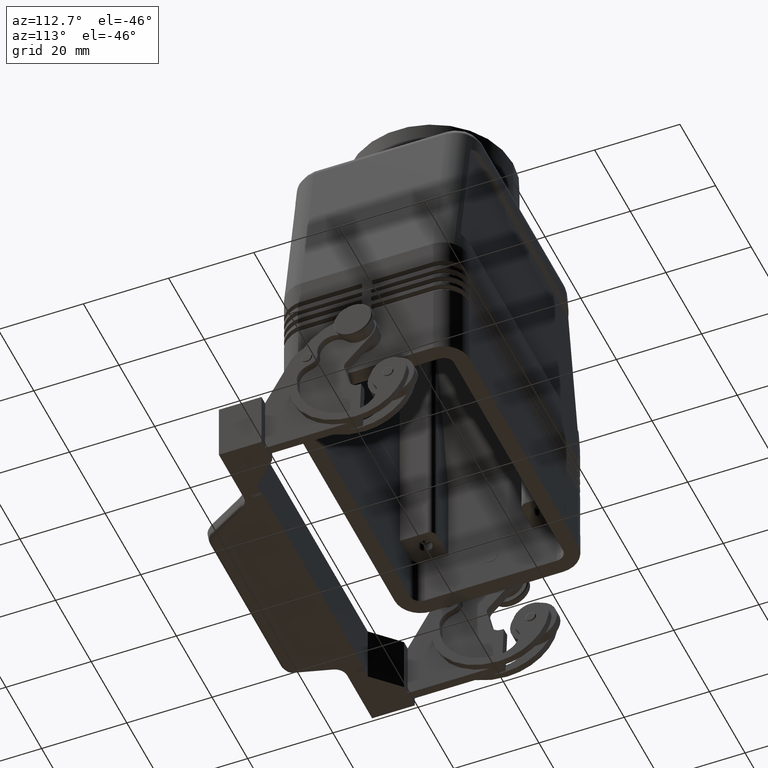
[diagram: clean part render]
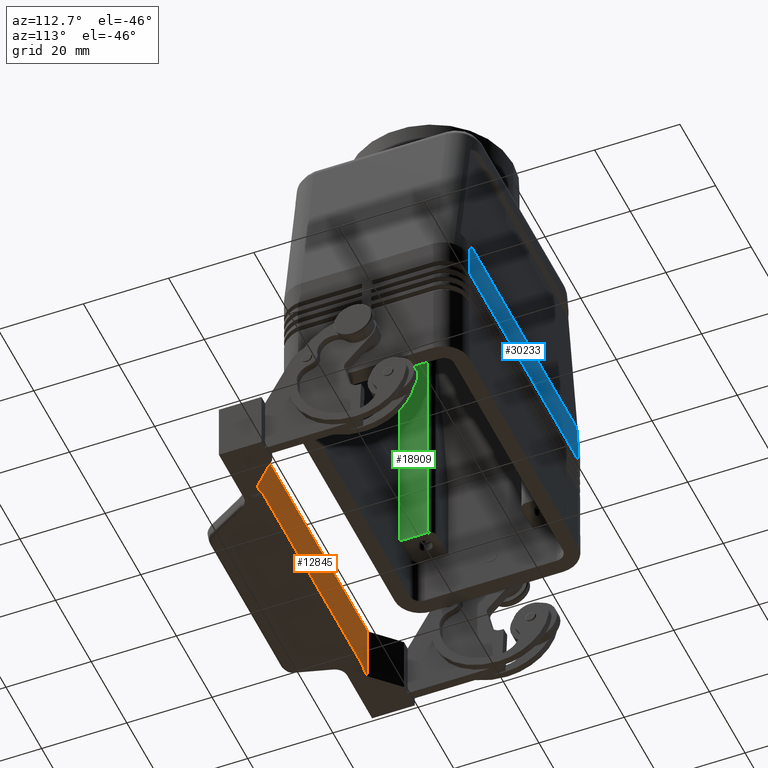
[diagram: same view with three faces highlighted in distinct colors, each labeled with its STEP entity id]
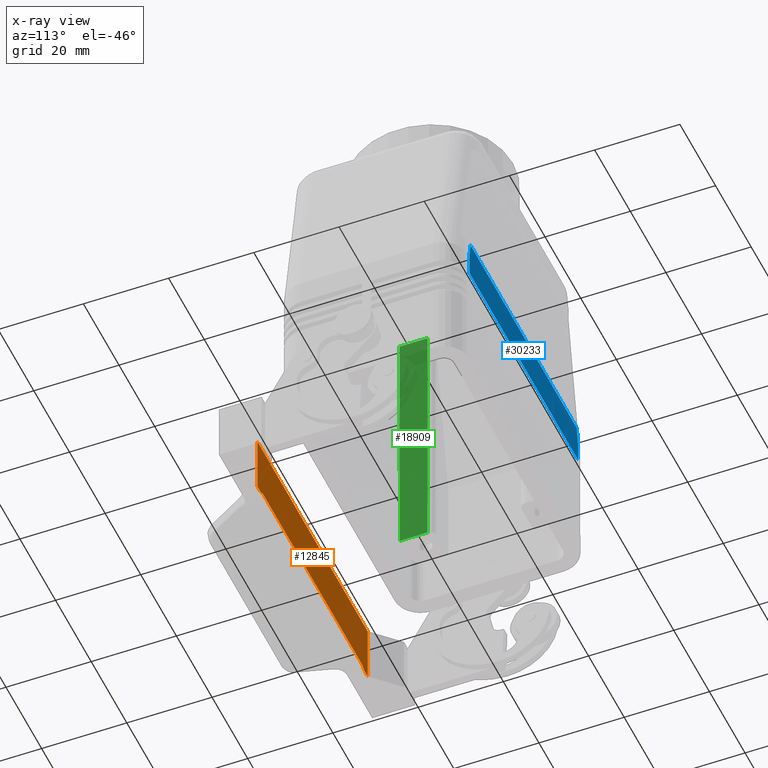
[diagram: x-ray of the same camera — body ghosted, the three highlighted faces saturated]
A machine part, auxiliary view with three faces highlighted in distinct colors.
The next image is the same camera in x-ray (body ghosted, the three faces saturated) — at least one of them is partly hidden behind the body in this view.
Their STEP definitions:

[orange] entity #12845 — the highlighted face is a freeform B-spline surface patch.
#11082=CARTESIAN_POINT('',(31.000000000000007,-28.049999999999997,-6.499999999999998));
#11083=VERTEX_POINT('',#11082);
#11090=CARTESIAN_POINT('',(-31.000000000000007,-28.049999999999997,-6.499999999999998));
#11091=VERTEX_POINT('',#11090);
#11092=CARTESIAN_POINT('',(-31.000000000000007,-28.049999999999997,-6.499999999999998));
#11093=DIRECTION('',(1.0,0.0,0.0));
#11094=VECTOR('',#11093,62.000000000000014);
#11095=LINE('',#11092,#11094);
#11096=EDGE_CURVE('',#11091,#11083,#11095,.T.);
#12183=CARTESIAN_POINT('',(-27.450314117284780,-28.050000000000075,-19.794692077166150));
#12184=VERTEX_POINT('',#12183);
#12204=CARTESIAN_POINT('',(27.450314117284783,-28.050000000000086,-19.794692077166150));
#12205=VERTEX_POINT('',#12204);
#12206=CARTESIAN_POINT('',(27.450314117284783,-28.050000000000086,-19.794692077166150));
#12207=DIRECTION('',(-1.0,0.0,0.0));
#12208=VECTOR('',#12207,54.900628234569567);
#12209=LINE('',#12206,#12208);
#12210=EDGE_CURVE('',#12205,#12184,#12209,.T.);
#12579=CARTESIAN_POINT('',(29.000000000000004,-28.049999999999997,-20.500000000000004));
#12580=VERTEX_POINT('',#12579);
#12581=CARTESIAN_POINT('',(27.450314117284776,-28.049999999999994,-19.794692077166133));
#12582=CARTESIAN_POINT('',(27.708870122620940,-28.049999999999994,-19.794692077166133));
#12583=CARTESIAN_POINT('',(27.964989212540566,-28.050000000025051,-19.844576649596448));
#12584=CARTESIAN_POINT('',(28.359455329492640,-28.050000000025051,-20.001732499397598));
#12585=CARTESIAN_POINT('',(28.505749150211056,-28.050000000001162,-20.081484425390151));
#12586=CARTESIAN_POINT('',(28.772637266763788,-28.050000000001162,-20.270936916525869));
#12587=CARTESIAN_POINT('',(28.893077766122786,-28.049999999999997,-20.379196010824771));
#12588=CARTESIAN_POINT('',(29.000000000000004,-28.049999999999997,-20.500000000000004));
#12589=B_SPLINE_CURVE_WITH_KNOTS('',3,(#12581,#12582,#12583,#12584,#12585,#12586,#12587,#12588),.UNSPECIFIED.,.F.,.U.,(4,2,2,4),(0.0,0.077566801600850,0.127335135555533,0.175708819902771),.UNSPECIFIED.);
#12590=EDGE_CURVE('',#12205,#12580,#12589,.T.);
#12783=CARTESIAN_POINT('',(-29.000000000000004,-28.049999999999997,-20.500000000000004));
#12784=VERTEX_POINT('',#12783);
#12791=CARTESIAN_POINT('',(-29.000000000000004,-28.049999999999997,-20.500000000000004));
#12792=CARTESIAN_POINT('',(-28.815509792182855,-28.049999999999997,-20.291557356595522));
#12793=CARTESIAN_POINT('',(-28.591434853682802,-28.050000000000001,-20.121211644153295));
#12794=CARTESIAN_POINT('',(-28.203611653296527,-28.050000000000001,-19.933634266423692));
#12795=CARTESIAN_POINT('',(-28.059420490023154,-28.049999999999471,-19.882505051411240));
#12796=CARTESIAN_POINT('',(-27.759899629346499,-28.049999999999471,-19.812640294025837));
#12797=CARTESIAN_POINT('',(-27.605373061447494,-28.050000000000001,-19.794692077166133));
#12798=CARTESIAN_POINT('',(-27.450314117284776,-28.050000000000001,-19.794692077166133));
#12799=B_SPLINE_CURVE_WITH_KNOTS('',3,(#12791,#12792,#12793,#12794,#12795,#12796,#12797,#12798),.UNSPECIFIED.,.F.,.U.,(4,2,2,4),(0.0,0.083508367923745,0.129267533136230,0.175802404873544),.UNSPECIFIED.);
#12800=EDGE_CURVE('',#12184,#12784,#12799,.F.);
#12806=CARTESIAN_POINT('',(-31.000000000000007,-28.049999999999997,-20.500002567806611));
#12807=CARTESIAN_POINT('',(-31.000000000000007,-28.049999999999997,-6.499999999999996));
#12808=CARTESIAN_POINT('',(31.000000000000007,-28.049999999999997,-20.500002567806611));
#12809=CARTESIAN_POINT('',(31.000000000000007,-28.049999999999997,-6.499999999999996));
#12810=B_SPLINE_SURFACE_WITH_KNOTS('',1,1,((#12806,#12808),(#12807,#12809)),.UNSPECIFIED.,.F.,.F.,.U.,(2,2),(2,2),(0.0,14.000002567806614),(0.0,62.000000000000014),.UNSPECIFIED.);
#12811=ORIENTED_EDGE('',*,*,#11096,.T.);
#12812=CARTESIAN_POINT('',(31.000000000000007,-28.049999999999997,-20.500000000000004));
#12813=VERTEX_POINT('',#12812);
#12814=CARTESIAN_POINT('',(31.000000000000007,-28.049999999999997,-6.499999999999998));
#12815=DIRECTION('',(0.0,0.0,-1.0));
#12816=VECTOR('',#12815,14.000000000000005);
#12817=LINE('',#12814,#12816);
#12818=EDGE_CURVE('',#11083,#12813,#12817,.T.);
#12819=ORIENTED_EDGE('',*,*,#12818,.T.);
#12820=CARTESIAN_POINT('',(31.000000000000007,-28.049999999999997,-20.500000000000004));
#12821=DIRECTION('',(-1.0,0.0,0.0));
#12822=VECTOR('',#12821,2.000000000000004);
#12823=LINE('',#12820,#12822);
#12824=EDGE_CURVE('',#12813,#12580,#12823,.T.);
#12825=ORIENTED_EDGE('',*,*,#12824,.T.);
#12826=ORIENTED_EDGE('',*,*,#12590,.F.);
#12827=ORIENTED_EDGE('',*,*,#12210,.T.);
#12828=ORIENTED_EDGE('',*,*,#12800,.T.);
#12829=CARTESIAN_POINT('',(-31.000000000000007,-28.049999999999997,-20.500000000000004));
#12830=VERTEX_POINT('',#12829);
#12831=CARTESIAN_POINT('',(-31.000000000000007,-28.049999999999997,-20.500000000000004));
#12832=DIRECTION('',(1.0,0.0,0.0));
#12833=VECTOR('',#12832,2.000000000000004);
#12834=LINE('',#12831,#12833);
#12835=EDGE_CURVE('',#12830,#12784,#12834,.T.);
#12836=ORIENTED_EDGE('',*,*,#12835,.F.);
#12837=CARTESIAN_POINT('',(-31.000000000000007,-28.049999999999997,-6.499999999999998));
#12838=DIRECTION('',(0.0,0.0,-1.0));
#12839=VECTOR('',#12838,14.000000000000005);
#12840=LINE('',#12837,#12839);
#12841=EDGE_CURVE('',#11091,#12830,#12840,.T.);
#12842=ORIENTED_EDGE('',*,*,#12841,.F.);
#12843=EDGE_LOOP('',(#12811,#12819,#12825,#12826,#12827,#12828,#12836,#12842));
#12844=FACE_OUTER_BOUND('',#12843,.T.);
#12845=ADVANCED_FACE('',(#12844),#12810,.T.);

[blue] entity #30233 — the highlighted planar face has unit normal (0, 1, 0).
#4463=CARTESIAN_POINT('',(30.500000000000004,21.500000000000000,31.975068018844517));
#4464=VERTEX_POINT('',#4463);
#4472=CARTESIAN_POINT('',(29.790295896205915,21.499999999999989,36.000000000000007));
#4473=VERTEX_POINT('',#4472);
#4474=CARTESIAN_POINT('',(30.500000000000004,21.500000000000000,31.975068018844517));
#4475=DIRECTION('',(-0.173648177666930,-2.607801E-015,0.984807753012208));
#4476=VECTOR('',#4475,4.087023044695298);
#4477=LINE('',#4474,#4476);
#4478=EDGE_CURVE('',#4464,#4473,#4477,.T.);
#4569=CARTESIAN_POINT('',(-29.790295896205897,21.499999999999989,36.000000000000007));
#4570=VERTEX_POINT('',#4569);
#4578=CARTESIAN_POINT('',(-30.500000000000004,21.500000000000000,31.975068018844397));
#4579=VERTEX_POINT('',#4578);
#4580=CARTESIAN_POINT('',(-29.790295896205897,21.499999999999989,36.000000000000007));
#4581=DIRECTION('',(-0.173648177666930,2.607801E-015,-0.984807753012208));
#4582=VECTOR('',#4581,4.087023044695420);
#4583=LINE('',#4580,#4582);
#4584=EDGE_CURVE('',#4570,#4579,#4583,.T.);
#20024=CARTESIAN_POINT('',(-29.790295896205897,21.499999999999989,36.000000000000007));
#20025=DIRECTION('',(1.0,0.0,0.0));
#20026=VECTOR('',#20025,59.580591792411809);
#20027=LINE('',#20024,#20026);
#20028=EDGE_CURVE('',#4570,#4473,#20027,.T.);
#29086=CARTESIAN_POINT('',(-30.500000000000007,21.500000000000007,26.750000000000004));
#29087=VERTEX_POINT('',#29086);
#29162=CARTESIAN_POINT('',(30.500000000000007,21.500000000000004,26.750000000000004));
#29163=VERTEX_POINT('',#29162);
#29164=CARTESIAN_POINT('',(30.500000000000007,21.500000000000004,26.750000000000004));
#29165=DIRECTION('',(-1.0,0.0,0.0));
#29166=VECTOR('',#29165,61.000000000000014);
#29167=LINE('',#29164,#29166);
#29168=EDGE_CURVE('',#29163,#29087,#29167,.T.);
#29769=CARTESIAN_POINT('',(30.500000000000007,21.500000000000004,26.750000000000004));
#29770=DIRECTION('',(0.0,0.0,1.0));
#29771=VECTOR('',#29770,5.225068018844514);
#29772=LINE('',#29769,#29771);
#29773=EDGE_CURVE('',#29163,#4464,#29772,.T.);
#30215=CARTESIAN_POINT('',(-30.500000000000004,21.500000000000000,5.500000000000000));
#30216=DIRECTION('',(0.0,1.0,0.0));
#30217=DIRECTION('',(0.0,0.0,1.0));
#30218=AXIS2_PLACEMENT_3D('',#30215,#30216,#30217);
#30219=PLANE('',#30218);
#30220=ORIENTED_EDGE('',*,*,#20028,.T.);
#30221=ORIENTED_EDGE('',*,*,#4478,.F.);
#30222=ORIENTED_EDGE('',*,*,#29773,.F.);
#30223=ORIENTED_EDGE('',*,*,#29168,.T.);
#30224=CARTESIAN_POINT('',(-30.500000000000007,21.500000000000007,26.750000000000004));
#30225=DIRECTION('',(0.0,0.0,1.0));
#30226=VECTOR('',#30225,5.225068018844393);
#30227=LINE('',#30224,#30226);
#30228=EDGE_CURVE('',#29087,#4579,#30227,.T.);
#30229=ORIENTED_EDGE('',*,*,#30228,.T.);
#30230=ORIENTED_EDGE('',*,*,#4584,.F.);
#30231=EDGE_LOOP('',(#30220,#30221,#30222,#30223,#30229,#30230));
#30232=FACE_OUTER_BOUND('',#30231,.T.);
#30233=ADVANCED_FACE('',(#30232),#30219,.T.);

[green] entity #18909 — the highlighted planar face has unit normal (1, 0, 0).
#18690=CARTESIAN_POINT('',(-25.000000000000004,-18.049999999999990,33.913329402510215));
#18691=VERTEX_POINT('',#18690);
#18692=CARTESIAN_POINT('',(-25.0,-17.999999999999993,32.500000000000000));
#18693=VERTEX_POINT('',#18692);
#18694=CARTESIAN_POINT('',(-25.0,1.950000000000010,33.913329402510215));
#18695=DIRECTION('',(1.0,0.0,0.0));
#18696=DIRECTION('',(0.0,-0.997500000000000,-0.070666470125511));
#18697=AXIS2_PLACEMENT_3D('',#18694,#18695,#18696);
#18698=CIRCLE('',#18697,20.0);
#18699=EDGE_CURVE('',#18691,#18693,#18698,.T.);
#18780=CARTESIAN_POINT('',(-25.0,-18.049999999999990,72.550000000000026));
#18781=VERTEX_POINT('',#18780);
#18782=CARTESIAN_POINT('',(-25.000000000000004,-18.049999999999990,33.913329402510215));
#18783=DIRECTION('',(0.0,0.0,1.0));
#18784=VECTOR('',#18783,38.636670597489811);
#18785=LINE('',#18782,#18784);
#18786=EDGE_CURVE('',#18691,#18781,#18785,.T.);
#18851=CARTESIAN_POINT('',(-25.000000000000004,-11.500000000000000,72.550000000000026));
#18852=VERTEX_POINT('',#18851);
#18860=CARTESIAN_POINT('',(-25.000000000000004,-11.500000000000000,12.000000000000002));
#18861=VERTEX_POINT('',#18860);
#18862=CARTESIAN_POINT('',(-25.000000000000004,-11.500000000000000,12.000000000000002));
#18863=DIRECTION('',(0.0,0.0,1.0));
#18864=VECTOR('',#18863,60.550000000000026);
#18865=LINE('',#18862,#18864);
#18866=EDGE_CURVE('',#18861,#18852,#18865,.T.);
#18879=CARTESIAN_POINT('',(-25.000000000000004,-11.500000000000000,12.000000000000002));
#18880=DIRECTION('',(1.0,0.0,0.0));
#18881=DIRECTION('',(0.0,0.0,1.0));
#18882=AXIS2_PLACEMENT_3D('',#18879,#18880,#18881);
#18883=PLANE('',#18882);
#18884=ORIENTED_EDGE('',*,*,#18699,.T.);
#18885=CARTESIAN_POINT('',(-25.000000000000004,-17.999999999999993,12.000000000000002));
#18886=VERTEX_POINT('',#18885);
#18887=CARTESIAN_POINT('',(-25.000000000000004,-17.999999999999993,12.000000000000002));
#18888=DIRECTION('',(0.0,0.0,1.0));
#18889=VECTOR('',#18888,20.500000000000000);
#18890=LINE('',#18887,#18889);
#18891=EDGE_CURVE('',#18886,#18693,#18890,.T.);
#18892=ORIENTED_EDGE('',*,*,#18891,.F.);
#18893=CARTESIAN_POINT('',(-25.000000000000004,-17.999999999999993,12.000000000000002));
#18894=DIRECTION('',(0.0,1.0,0.0));
#18895=VECTOR('',#18894,6.499999999999993);
#18896=LINE('',#18893,#18895);
#18897=EDGE_CURVE('',#18886,#18861,#18896,.T.);
#18898=ORIENTED_EDGE('',*,*,#18897,.T.);
#18899=ORIENTED_EDGE('',*,*,#18866,.T.);
#18900=CARTESIAN_POINT('',(-25.0,-18.049999999999990,72.550000000000026));
#18901=DIRECTION('',(0.0,1.0,0.0));
#18902=VECTOR('',#18901,6.549999999999990);
#18903=LINE('',#18900,#18902);
#18904=EDGE_CURVE('',#18781,#18852,#18903,.T.);
#18905=ORIENTED_EDGE('',*,*,#18904,.F.);
#18906=ORIENTED_EDGE('',*,*,#18786,.F.);
#18907=EDGE_LOOP('',(#18884,#18892,#18898,#18899,#18905,#18906));
#18908=FACE_OUTER_BOUND('',#18907,.T.);
#18909=ADVANCED_FACE('',(#18908),#18883,.T.);